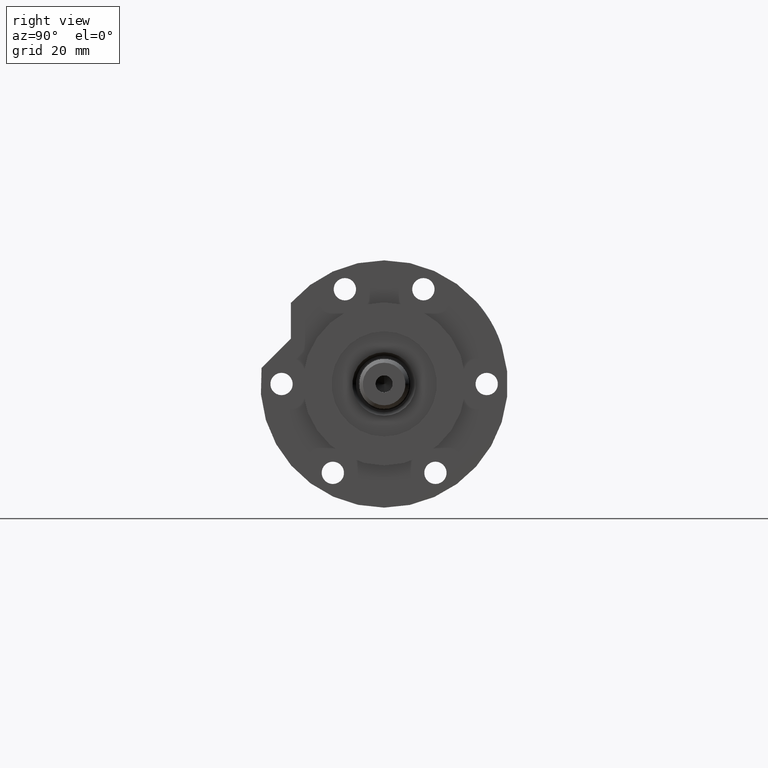
[diagram: clean part render]
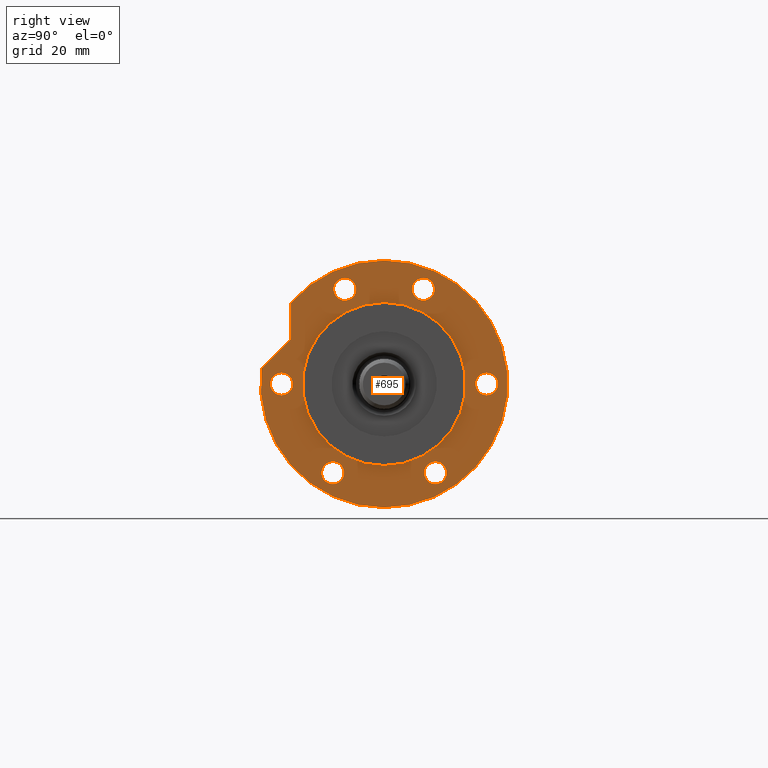
[diagram: same view with one face highlighted and labeled with its STEP entity id]
A machine part, right view. The second image highlights one B-rep face of the part: STEP entity #695.
In plain terms, the highlighted planar face has unit normal (1, 0, -0).
Its self-contained STEP definition (entity closure, byte-faithful):
#9 = CARTESIAN_POINT ( 'NONE',  ( 0.000000000000000000, 0.000000000000000000, 17.00000000000000000 ) ) ;
#11 = VERTEX_POINT ( 'NONE', #300 ) ;
#90 = FACE_OUTER_BOUND ( 'NONE', #4902, .T. ) ;
#105 = CIRCLE ( 'NONE', #3994, 4.250000000000000888 ) ;
#138 = VECTOR ( 'NONE', #448, 1000.000000000000000 ) ;
#143 = EDGE_LOOP ( 'NONE', ( #5623, #673 ) ) ;
#145 = VERTEX_POINT ( 'NONE', #5476 ) ;
#169 = EDGE_CURVE ( 'NONE', #3820, #2882, #5540, .T. ) ;
#180 = DIRECTION ( 'NONE',  ( 0.000000000000000000, 0.000000000000000000, 1.000000000000000000 ) ) ;
#195 = CIRCLE ( 'NONE', #1028, 4.250000000000000888 ) ;
#230 = DIRECTION ( 'NONE',  ( 0.000000000000000000, 0.000000000000000000, 1.000000000000000000 ) ) ;
#233 = EDGE_LOOP ( 'NONE', ( #3846, #3805 ) ) ;
#299 = CIRCLE ( 'NONE', #2497, 4.250000000000003553 ) ;
#300 = CARTESIAN_POINT ( 'NONE',  ( -29.52499074759315434, 19.49999999999992539, 17.00000000000000000 ) ) ;
#320 = DIRECTION ( 'NONE',  ( 0.000000000000000000, 0.000000000000000000, 1.000000000000000000 ) ) ;
#346 = VERTEX_POINT ( 'NONE', #4710 ) ;
#370 = EDGE_LOOP ( 'NONE', ( #5660, #4840 ) ) ;
#408 = AXIS2_PLACEMENT_3D ( 'NONE', #5427, #4385, #5887 ) ;
#448 = DIRECTION ( 'NONE',  ( 1.000000000000000000, -1.019675812477181804E-15, 0.000000000000000000 ) ) ;
#486 = EDGE_CURVE ( 'NONE', #11, #1760, #3457, .T. ) ;
#577 = FACE_BOUND ( 'NONE', #4841, .T. ) ;
#589 = DIRECTION ( 'NONE',  ( 0.000000000000000000, 0.000000000000000000, 1.000000000000000000 ) ) ;
#610 = AXIS2_PLACEMENT_3D ( 'NONE', #1432, #1411, #2321 ) ;
#673 = ORIENTED_EDGE ( 'NONE', *, *, #1277, .F. ) ;
#687 = EDGE_CURVE ( 'NONE', #4262, #4573, #299, .T. ) ;
#695 = ADVANCED_FACE ( 'NONE', ( #1076, #3086, #577, #1606, #2593, #4598, #90, #3118 ), #5156, .T. ) ;
#710 = CARTESIAN_POINT ( 'NONE',  ( 6.092310621118299352, 46.60347359688769586, 17.00000000000000000 ) ) ;
#770 = VERTEX_POINT ( 'NONE', #6211 ) ;
#791 = VERTEX_POINT ( 'NONE', #2243 ) ;
#831 = CIRCLE ( 'NONE', #408, 31.00000000000000711 ) ;
#915 = CARTESIAN_POINT ( 'NONE',  ( 36.03130176794011419, -14.92465386223865842, 17.00000000000000000 ) ) ;
#944 = DIRECTION ( 'NONE',  ( 0.000000000000000000, 0.000000000000000000, 1.000000000000000000 ) ) ;
#955 = ORIENTED_EDGE ( 'NONE', *, *, #4477, .T. ) ;
#969 = CIRCLE ( 'NONE', #4880, 4.250000000000003553 ) ;
#992 = DIRECTION ( 'NONE',  ( 1.000000000000000000, 0.000000000000000000, 0.000000000000000000 ) ) ;
#1028 = AXIS2_PLACEMENT_3D ( 'NONE', #5609, #1109, #2531 ) ;
#1076 = FACE_BOUND ( 'NONE', #370, .T. ) ;
#1094 = CARTESIAN_POINT ( 'NONE',  ( 0.000000000000000000, -39.00000000000000000, 17.00000000000000000 ) ) ;
#1109 = DIRECTION ( 'NONE',  ( 0.000000000000000000, 0.000000000000000000, 1.000000000000000000 ) ) ;
#1134 = CARTESIAN_POINT ( 'NONE',  ( -4.250000000000000888, 39.00000000000000000, 17.00000000000000000 ) ) ;
#1158 = VERTEX_POINT ( 'NONE', #3111 ) ;
#1162 = DIRECTION ( 'NONE',  ( 1.000000000000000000, 0.000000000000000000, 0.000000000000000000 ) ) ;
#1184 = VERTEX_POINT ( 'NONE', #4238 ) ;
#1203 = DIRECTION ( 'NONE',  ( 1.000000000000000000, 0.000000000000000000, 0.000000000000000000 ) ) ;
#1226 = EDGE_CURVE ( 'NONE', #791, #1184, #2609, .T. ) ;
#1236 = CARTESIAN_POINT ( 'NONE',  ( 0.000000000000000000, 0.000000000000000000, 17.00000000000000000 ) ) ;
#1237 = CARTESIAN_POINT ( 'NONE',  ( 0.000000000000000000, 0.000000000000000000, 17.00000000000000000 ) ) ;
#1269 = DIRECTION ( 'NONE',  ( 0.000000000000000000, 0.000000000000000000, 1.000000000000000000 ) ) ;
#1276 = DIRECTION ( 'NONE',  ( 0.000000000000000000, 0.000000000000000000, 1.000000000000000000 ) ) ;
#1277 = EDGE_CURVE ( 'NONE', #4573, #4262, #5122, .T. ) ;
#1298 = VERTEX_POINT ( 'NONE', #3284 ) ;
#1299 = ORIENTED_EDGE ( 'NONE', *, *, #6497, .T. ) ;
#1359 = ORIENTED_EDGE ( 'NONE', *, *, #1939, .F. ) ;
#1381 = ORIENTED_EDGE ( 'NONE', *, *, #5933, .F. ) ;
#1411 = DIRECTION ( 'NONE',  ( 0.000000000000000000, 0.000000000000000000, 1.000000000000000000 ) ) ;
#1412 = CARTESIAN_POINT ( 'NONE',  ( -38.02499074759315079, 19.49999999999992539, 17.00000000000000000 ) ) ;
#1432 = CARTESIAN_POINT ( 'NONE',  ( -33.77499074759315079, 19.49999999999992539, 17.00000000000000000 ) ) ;
#1455 = VECTOR ( 'NONE', #6320, 999.9999999999998863 ) ;
#1530 = DIRECTION ( 'NONE',  ( 1.000000000000000000, 0.000000000000000000, 0.000000000000000000 ) ) ;
#1549 = AXIS2_PLACEMENT_3D ( 'NONE', #5226, #3747, #6247 ) ;
#1606 = FACE_BOUND ( 'NONE', #4052, .T. ) ;
#1675 = CARTESIAN_POINT ( 'NONE',  ( 0.000000000000000000, 0.000000000000000000, 17.00000000000000000 ) ) ;
#1749 = EDGE_CURVE ( 'NONE', #1184, #791, #831, .T. ) ;
#1760 = VERTEX_POINT ( 'NONE', #1412 ) ;
#1801 = CIRCLE ( 'NONE', #3574, 4.250000000000000888 ) ;
#1818 = CIRCLE ( 'NONE', #4763, 4.250000000000003553 ) ;
#1865 = DIRECTION ( 'NONE',  ( 1.000000000000000000, 0.000000000000000000, 0.000000000000000000 ) ) ;
#1939 = EDGE_CURVE ( 'NONE', #4242, #4833, #195, .T. ) ;
#1961 = CARTESIAN_POINT ( 'NONE',  ( 36.03130176794011419, 14.92465386223865842, 17.00000000000000000 ) ) ;
#1994 = CARTESIAN_POINT ( 'NONE',  ( 40.28130176794012129, -14.92465386223865842, 17.00000000000000000 ) ) ;
#2057 = LINE ( 'NONE', #2953, #138 ) ;
#2092 = DIRECTION ( 'NONE',  ( 1.000000000000000000, 0.000000000000000000, 0.000000000000000000 ) ) ;
#2183 = ORIENTED_EDGE ( 'NONE', *, *, #2639, .T. ) ;
#2185 = EDGE_CURVE ( 'NONE', #5180, #346, #5765, .T. ) ;
#2243 = CARTESIAN_POINT ( 'NONE',  ( 31.00000000000000711, 3.796405077356795904E-15, 17.00000000000000000 ) ) ;
#2321 = DIRECTION ( 'NONE',  ( 1.000000000000000000, 0.000000000000000000, 0.000000000000000000 ) ) ;
#2349 = EDGE_CURVE ( 'NONE', #5859, #1298, #2937, .T. ) ;
#2401 = EDGE_CURVE ( 'NONE', #6031, #5234, #4820, .T. ) ;
#2409 = AXIS2_PLACEMENT_3D ( 'NONE', #1236, #180, #1203 ) ;
#2444 = AXIS2_PLACEMENT_3D ( 'NONE', #4171, #5703, #5635 ) ;
#2497 = AXIS2_PLACEMENT_3D ( 'NONE', #1961, #944, #3976 ) ;
#2531 = DIRECTION ( 'NONE',  ( 1.000000000000000000, 0.000000000000000000, 0.000000000000000000 ) ) ;
#2593 = FACE_BOUND ( 'NONE', #233, .T. ) ;
#2609 = CIRCLE ( 'NONE', #2409, 31.00000000000000711 ) ;
#2612 = DIRECTION ( 'NONE',  ( 0.000000000000000000, 0.000000000000000000, 1.000000000000000000 ) ) ;
#2639 = EDGE_CURVE ( 'NONE', #1158, #770, #6196, .T. ) ;
#2725 = AXIS2_PLACEMENT_3D ( 'NONE', #4469, #5015, #1530 ) ;
#2784 = EDGE_LOOP ( 'NONE', ( #4678, #3413 ) ) ;
#2824 = DIRECTION ( 'NONE',  ( 1.000000000000000000, 0.000000000000000000, 0.000000000000000000 ) ) ;
#2830 = EDGE_CURVE ( 'NONE', #4833, #4242, #105, .T. ) ;
#2861 = DIRECTION ( 'NONE',  ( 1.000000000000000000, 0.000000000000000000, 0.000000000000000000 ) ) ;
#2882 = VERTEX_POINT ( 'NONE', #3667 ) ;
#2937 = CIRCLE ( 'NONE', #3367, 4.250000000000003553 ) ;
#2953 = CARTESIAN_POINT ( 'NONE',  ( 3.617158501555293296E-14, 35.47361286101151734, 17.00000000000000000 ) ) ;
#3036 = EDGE_CURVE ( 'NONE', #346, #5180, #1801, .T. ) ;
#3062 = CARTESIAN_POINT ( 'NONE',  ( 0.000000000000000000, 39.00000000000000000, 17.00000000000000000 ) ) ;
#3086 = FACE_BOUND ( 'NONE', #143, .T. ) ;
#3111 = CARTESIAN_POINT ( 'NONE',  ( 46.99999999999999289, 5.755839955992559063E-15, 17.00000000000000000 ) ) ;
#3118 = FACE_BOUND ( 'NONE', #2784, .T. ) ;
#3141 = AXIS2_PLACEMENT_3D ( 'NONE', #3062, #4575, #4479 ) ;
#3284 = CARTESIAN_POINT ( 'NONE',  ( 31.78130176794011064, -14.92465386223865842, 17.00000000000000000 ) ) ;
#3345 = CARTESIAN_POINT ( 'NONE',  ( 0.000000000000000000, 39.00000000000000000, 17.00000000000000000 ) ) ;
#3367 = AXIS2_PLACEMENT_3D ( 'NONE', #915, #6381, #5343 ) ;
#3413 = ORIENTED_EDGE ( 'NONE', *, *, #1226, .F. ) ;
#3457 = CIRCLE ( 'NONE', #610, 4.249999999999996447 ) ;
#3486 = CARTESIAN_POINT ( 'NONE',  ( -29.52499074759301578, -19.50000000000015277, 17.00000000000000000 ) ) ;
#3574 = AXIS2_PLACEMENT_3D ( 'NONE', #3345, #1269, #4266 ) ;
#3576 = DIRECTION ( 'NONE',  ( 0.000000000000000000, 0.000000000000000000, 1.000000000000000000 ) ) ;
#3596 = AXIS2_PLACEMENT_3D ( 'NONE', #1237, #1276, #2824 ) ;
#3661 = DIRECTION ( 'NONE',  ( 1.000000000000000000, 0.000000000000000000, 0.000000000000000000 ) ) ;
#3667 = CARTESIAN_POINT ( 'NONE',  ( -38.02499074759302289, -19.50000000000015277, 17.00000000000000000 ) ) ;
#3713 = CARTESIAN_POINT ( 'NONE',  ( 4.250000000000000888, -39.00000000000000000, 17.00000000000000000 ) ) ;
#3747 = DIRECTION ( 'NONE',  ( 0.000000000000000000, 0.000000000000000000, 1.000000000000000000 ) ) ;
#3782 = ORIENTED_EDGE ( 'NONE', *, *, #2830, .F. ) ;
#3805 = ORIENTED_EDGE ( 'NONE', *, *, #169, .F. ) ;
#3817 = CIRCLE ( 'NONE', #3596, 46.99999999999999289 ) ;
#3819 = CIRCLE ( 'NONE', #2444, 4.249999999999996447 ) ;
#3820 = VERTEX_POINT ( 'NONE', #3486 ) ;
#3846 = ORIENTED_EDGE ( 'NONE', *, *, #5295, .F. ) ;
#3976 = DIRECTION ( 'NONE',  ( 1.000000000000000000, 0.000000000000000000, 0.000000000000000000 ) ) ;
#3994 = AXIS2_PLACEMENT_3D ( 'NONE', #1094, #2612, #1162 ) ;
#4052 = EDGE_LOOP ( 'NONE', ( #3782, #1359 ) ) ;
#4115 = AXIS2_PLACEMENT_3D ( 'NONE', #9, #589, #3661 ) ;
#4141 = CARTESIAN_POINT ( 'NONE',  ( -33.77499074759302289, -19.50000000000015277, 17.00000000000000000 ) ) ;
#4171 = CARTESIAN_POINT ( 'NONE',  ( -33.77499074759315079, 19.49999999999992539, 17.00000000000000000 ) ) ;
#4224 = CIRCLE ( 'NONE', #4115, 46.99999999999999289 ) ;
#4238 = CARTESIAN_POINT ( 'NONE',  ( -31.00000000000000711, 0.000000000000000000, 17.00000000000000000 ) ) ;
#4242 = VERTEX_POINT ( 'NONE', #3713 ) ;
#4262 = VERTEX_POINT ( 'NONE', #4734 ) ;
#4266 = DIRECTION ( 'NONE',  ( 1.000000000000000000, 0.000000000000000000, 0.000000000000000000 ) ) ;
#4271 = CARTESIAN_POINT ( 'NONE',  ( 36.03130176794011419, 14.92465386223865842, 17.00000000000000000 ) ) ;
#4324 = CARTESIAN_POINT ( 'NONE',  ( 26.34789210900296652, 26.34789210900323297, 17.00000000000000000 ) ) ;
#4385 = DIRECTION ( 'NONE',  ( 0.000000000000000000, 0.000000000000000000, 1.000000000000000000 ) ) ;
#4469 = CARTESIAN_POINT ( 'NONE',  ( -33.77499074759302289, -19.50000000000015277, 17.00000000000000000 ) ) ;
#4477 = EDGE_CURVE ( 'NONE', #6031, #145, #4224, .T. ) ;
#4479 = DIRECTION ( 'NONE',  ( 1.000000000000000000, 0.000000000000000000, 0.000000000000000000 ) ) ;
#4573 = VERTEX_POINT ( 'NONE', #6325 ) ;
#4575 = DIRECTION ( 'NONE',  ( 0.000000000000000000, 0.000000000000000000, 1.000000000000000000 ) ) ;
#4594 = CARTESIAN_POINT ( 'NONE',  ( 36.03130176794011419, -14.92465386223865842, 17.00000000000000000 ) ) ;
#4598 = FACE_BOUND ( 'NONE', #4903, .T. ) ;
#4643 = ORIENTED_EDGE ( 'NONE', *, *, #486, .F. ) ;
#4678 = ORIENTED_EDGE ( 'NONE', *, *, #1749, .F. ) ;
#4710 = CARTESIAN_POINT ( 'NONE',  ( 4.250000000000000888, 39.00000000000000000, 17.00000000000000000 ) ) ;
#4734 = CARTESIAN_POINT ( 'NONE',  ( 31.78130176794011064, 14.92465386223865842, 17.00000000000000000 ) ) ;
#4763 = AXIS2_PLACEMENT_3D ( 'NONE', #4141, #4923, #2861 ) ;
#4820 = LINE ( 'NONE', #4324, #1455 ) ;
#4833 = VERTEX_POINT ( 'NONE', #6045 ) ;
#4840 = ORIENTED_EDGE ( 'NONE', *, *, #3036, .F. ) ;
#4841 = EDGE_LOOP ( 'NONE', ( #6115, #4943 ) ) ;
#4880 = AXIS2_PLACEMENT_3D ( 'NONE', #4594, #3576, #2092 ) ;
#4902 = EDGE_LOOP ( 'NONE', ( #1381, #6294, #955, #1299, #2183 ) ) ;
#4903 = EDGE_LOOP ( 'NONE', ( #5496, #4643 ) ) ;
#4923 = DIRECTION ( 'NONE',  ( 0.000000000000000000, 0.000000000000000000, 1.000000000000000000 ) ) ;
#4943 = ORIENTED_EDGE ( 'NONE', *, *, #2349, .F. ) ;
#5015 = DIRECTION ( 'NONE',  ( 0.000000000000000000, 0.000000000000000000, 1.000000000000000000 ) ) ;
#5122 = CIRCLE ( 'NONE', #5533, 4.250000000000003553 ) ;
#5156 = PLANE ( 'NONE',  #1549 ) ;
#5169 = EDGE_CURVE ( 'NONE', #1760, #11, #3819, .T. ) ;
#5180 = VERTEX_POINT ( 'NONE', #1134 ) ;
#5226 = CARTESIAN_POINT ( 'NONE',  ( 0.000000000000000000, 0.000000000000000000, 17.00000000000000000 ) ) ;
#5234 = VERTEX_POINT ( 'NONE', #5668 ) ;
#5295 = EDGE_CURVE ( 'NONE', #2882, #3820, #1818, .T. ) ;
#5343 = DIRECTION ( 'NONE',  ( 1.000000000000000000, 0.000000000000000000, 0.000000000000000000 ) ) ;
#5427 = CARTESIAN_POINT ( 'NONE',  ( 0.000000000000000000, 0.000000000000000000, 17.00000000000000000 ) ) ;
#5476 = CARTESIAN_POINT ( 'NONE',  ( -46.99999999999999289, 0.000000000000000000, 17.00000000000000000 ) ) ;
#5496 = ORIENTED_EDGE ( 'NONE', *, *, #5169, .F. ) ;
#5533 = AXIS2_PLACEMENT_3D ( 'NONE', #4271, #320, #1865 ) ;
#5540 = CIRCLE ( 'NONE', #2725, 4.250000000000003553 ) ;
#5609 = CARTESIAN_POINT ( 'NONE',  ( 0.000000000000000000, -39.00000000000000000, 17.00000000000000000 ) ) ;
#5623 = ORIENTED_EDGE ( 'NONE', *, *, #687, .F. ) ;
#5635 = DIRECTION ( 'NONE',  ( 1.000000000000000000, 0.000000000000000000, 0.000000000000000000 ) ) ;
#5660 = ORIENTED_EDGE ( 'NONE', *, *, #2185, .F. ) ;
#5668 = CARTESIAN_POINT ( 'NONE',  ( 17.22217135699461110, 35.47361286101150313, 17.00000000000000000 ) ) ;
#5703 = DIRECTION ( 'NONE',  ( 0.000000000000000000, 0.000000000000000000, 1.000000000000000000 ) ) ;
#5765 = CIRCLE ( 'NONE', #3141, 4.250000000000000888 ) ;
#5859 = VERTEX_POINT ( 'NONE', #1994 ) ;
#5887 = DIRECTION ( 'NONE',  ( 1.000000000000000000, 0.000000000000000000, 0.000000000000000000 ) ) ;
#5933 = EDGE_CURVE ( 'NONE', #5234, #770, #2057, .T. ) ;
#5945 = EDGE_CURVE ( 'NONE', #1298, #5859, #969, .T. ) ;
#6031 = VERTEX_POINT ( 'NONE', #710 ) ;
#6045 = CARTESIAN_POINT ( 'NONE',  ( -4.250000000000000888, -39.00000000000000000, 17.00000000000000000 ) ) ;
#6115 = ORIENTED_EDGE ( 'NONE', *, *, #5945, .F. ) ;
#6196 = CIRCLE ( 'NONE', #6495, 46.99999999999999289 ) ;
#6211 = CARTESIAN_POINT ( 'NONE',  ( 30.83217135699462830, 35.47361286101148892, 17.00000000000000000 ) ) ;
#6247 = DIRECTION ( 'NONE',  ( 1.000000000000000000, 0.000000000000000000, -0.000000000000000000 ) ) ;
#6294 = ORIENTED_EDGE ( 'NONE', *, *, #2401, .F. ) ;
#6320 = DIRECTION ( 'NONE',  ( 0.7071067811865511255, -0.7071067811865440200, 0.000000000000000000 ) ) ;
#6325 = CARTESIAN_POINT ( 'NONE',  ( 40.28130176794012129, 14.92465386223865842, 17.00000000000000000 ) ) ;
#6381 = DIRECTION ( 'NONE',  ( 0.000000000000000000, 0.000000000000000000, 1.000000000000000000 ) ) ;
#6495 = AXIS2_PLACEMENT_3D ( 'NONE', #1675, #230, #992 ) ;
#6497 = EDGE_CURVE ( 'NONE', #145, #1158, #3817, .T. ) ;